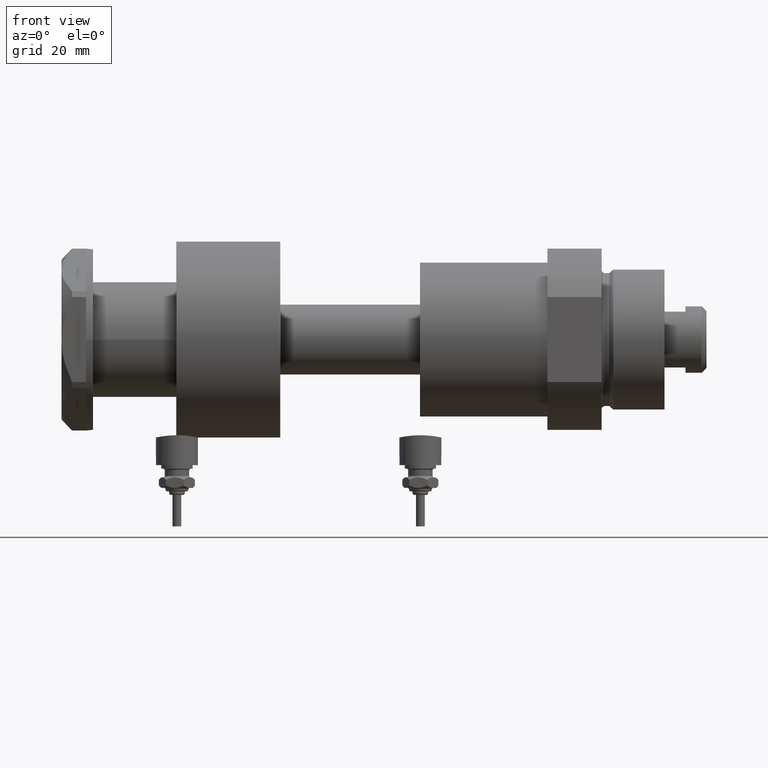
[diagram: clean part render]
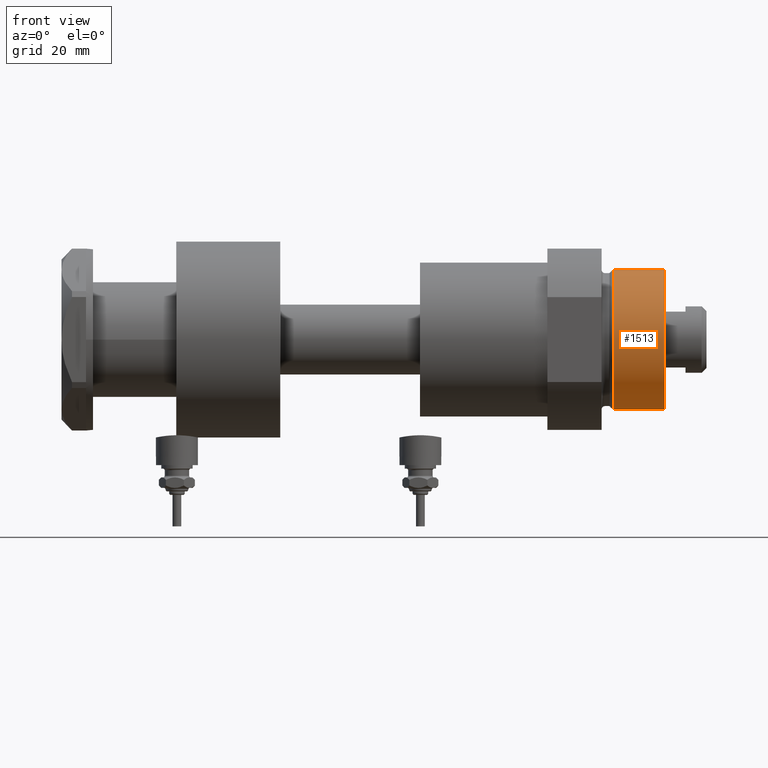
[diagram: same view with one face highlighted and labeled with its STEP entity id]
A machine part, front view. The second image highlights one B-rep face of the part: STEP entity #1513.
In plain terms, the highlighted cylindrical surface (partial cylindrical patch) has radius 20 mm, axis along (-1, -0, 0).
Its self-contained STEP definition (entity closure, byte-faithful):
#38 = CYLINDRICAL_SURFACE ( 'NONE', #1556, 19.99999999999999645 ) ;
#160 = CARTESIAN_POINT ( 'NONE',  ( 19.99999999999999645, 2.449293598294706119E-15, 33.50000000000000000 ) ) ;
#286 = VERTEX_POINT ( 'NONE', #4307 ) ;
#318 = CARTESIAN_POINT ( 'NONE',  ( -19.99999999999999645, 0.000000000000000000, 33.50000000000000000 ) ) ;
#377 = DIRECTION ( 'NONE',  ( -0.000000000000000000, -0.000000000000000000, -1.000000000000000000 ) ) ;
#666 = VECTOR ( 'NONE', #1517, 1000.000000000000000 ) ;
#869 = CARTESIAN_POINT ( 'NONE',  ( 19.99999999999999645, 2.449293598294706119E-15, 33.50000000000000000 ) ) ;
#1188 = DIRECTION ( 'NONE',  ( 1.000000000000000000, 0.000000000000000000, 0.000000000000000000 ) ) ;
#1204 = DIRECTION ( 'NONE',  ( -0.000000000000000000, -0.000000000000000000, -1.000000000000000000 ) ) ;
#1457 = ORIENTED_EDGE ( 'NONE', *, *, #4191, .F. ) ;
#1513 = ADVANCED_FACE ( 'NONE', ( #2038 ), #38, .T. ) ;
#1517 = DIRECTION ( 'NONE',  ( -0.000000000000000000, -0.000000000000000000, -1.000000000000000000 ) ) ;
#1556 = AXIS2_PLACEMENT_3D ( 'NONE', #1616, #377, #3168 ) ;
#1566 = CARTESIAN_POINT ( 'NONE',  ( 0.000000000000000000, 0.000000000000000000, 18.87384048104053846 ) ) ;
#1583 = AXIS2_PLACEMENT_3D ( 'NONE', #1631, #1952, #1188 ) ;
#1614 = CARTESIAN_POINT ( 'NONE',  ( -19.99999999999999645, 0.000000000000000000, 18.87384048104053846 ) ) ;
#1616 = CARTESIAN_POINT ( 'NONE',  ( 0.000000000000000000, 0.000000000000000000, 33.50000000000000000 ) ) ;
#1631 = CARTESIAN_POINT ( 'NONE',  ( 0.000000000000000000, 0.000000000000000000, 33.50000000000000000 ) ) ;
#1668 = VECTOR ( 'NONE', #1204, 1000.000000000000000 ) ;
#1952 = DIRECTION ( 'NONE',  ( 0.000000000000000000, 0.000000000000000000, 1.000000000000000000 ) ) ;
#2024 = EDGE_CURVE ( 'NONE', #4819, #286, #2031, .T. ) ;
#2031 = CIRCLE ( 'NONE', #3020, 19.99999999999999645 ) ;
#2038 = FACE_OUTER_BOUND ( 'NONE', #4912, .T. ) ;
#2294 = LINE ( 'NONE', #318, #666 ) ;
#3020 = AXIS2_PLACEMENT_3D ( 'NONE', #1566, #4319, #4667 ) ;
#3032 = VERTEX_POINT ( 'NONE', #160 ) ;
#3168 = DIRECTION ( 'NONE',  ( -1.000000000000000000, 0.000000000000000000, 0.000000000000000000 ) ) ;
#3191 = EDGE_CURVE ( 'NONE', #3695, #4819, #2294, .T. ) ;
#3232 = ORIENTED_EDGE ( 'NONE', *, *, #3191, .T. ) ;
#3561 = CARTESIAN_POINT ( 'NONE',  ( -19.99999999999999645, 0.000000000000000000, 33.50000000000000000 ) ) ;
#3695 = VERTEX_POINT ( 'NONE', #3561 ) ;
#3778 = EDGE_CURVE ( 'NONE', #3695, #3032, #5005, .T. ) ;
#4191 = EDGE_CURVE ( 'NONE', #3032, #286, #4360, .T. ) ;
#4307 = CARTESIAN_POINT ( 'NONE',  ( 19.99999999999999645, 2.449293598294706119E-15, 18.87384048104053846 ) ) ;
#4319 = DIRECTION ( 'NONE',  ( -0.000000000000000000, -0.000000000000000000, 1.000000000000000000 ) ) ;
#4360 = LINE ( 'NONE', #869, #1668 ) ;
#4369 = ORIENTED_EDGE ( 'NONE', *, *, #2024, .T. ) ;
#4667 = DIRECTION ( 'NONE',  ( 1.000000000000000000, 0.000000000000000000, 0.000000000000000000 ) ) ;
#4819 = VERTEX_POINT ( 'NONE', #1614 ) ;
#4900 = ORIENTED_EDGE ( 'NONE', *, *, #3778, .F. ) ;
#4912 = EDGE_LOOP ( 'NONE', ( #1457, #4900, #3232, #4369 ) ) ;
#5005 = CIRCLE ( 'NONE', #1583, 19.99999999999999645 ) ;